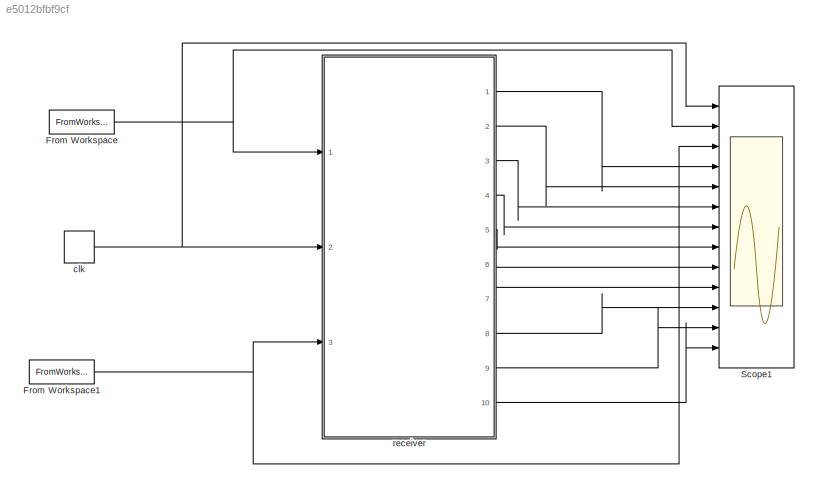
MODEL slx_e5012bfbf9cf
KIND model
CONFIG AbsTol = auto
CONFIG FixedStep = 1
CONFIG MaxStep = auto
CONFIG MinStep = auto
CONFIG RelTol = 1e-3
CONFIG SampleTimeConstraint = Unconstrained
CONFIG Solver = FixedStepDiscrete
CONFIG SolverMode = Auto
CONFIG SolverName = FixedStepDiscrete
CONFIG StartTime = 0.0
CONFIG StopTime = 1500
BLOCK [FromWorkspace] From Workspace
  SampleTime = 0
  VariableName = array
  ZeroCross = on
BLOCK [FromWorkspace] From Workspace1
  SampleTime = 0
  VariableName = read
  ZeroCross = on
BLOCK [Scope] Scope1
  Floating = off
  NumInputPorts = 13
  Ports = [13]
  SaveName = ScopeData1
  YMax = 5~5~5~5~5~5~5~5~5~5~5~5~5
  YMin = -5~-5~-5~-5~-5~-5~-5~-5~-5~-5~-5~-5~-5
BLOCK [DiscretePulseGenerator] clk
  Amplitude = true
  Ports = [0, 1]
  PulseType = Time based
  PulseWidth = 50
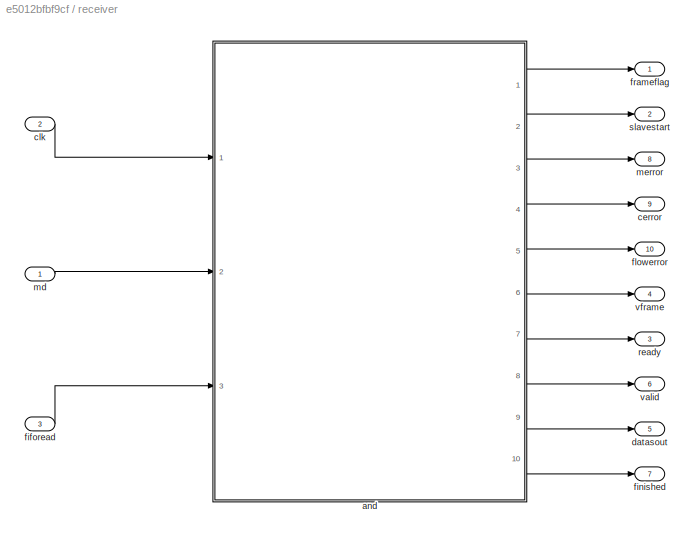
BLOCK [SubSystem] receiver
  Ports = [3, 10]
  RequestExecContextInheritance = off
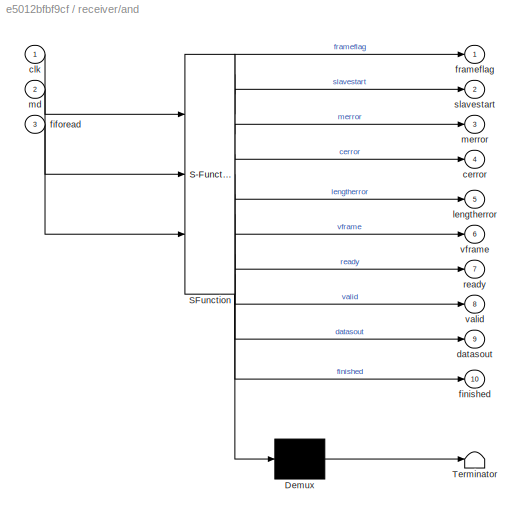
BLOCK [SubSystem] receiver/and
  ErrorFcn = Stateflow.Translate.translate
  PermitHierarchicalResolution = ExplicitOnly
  Ports = [3, 10]
  RequestExecContextInheritance = off
  SFBlockType = Chart
  TreatAsAtomicUnit = on
BLOCK [Demux] receiver/and/ Demux 
  Outputs = 1
  Ports = [1, 1]
BLOCK [S-Function] receiver/and/ SFunction 
  EnableBusSupport = on
  FunctionName = sf_sfun
  PortCounts = [3 11]
  Ports = [3, 11]
  Tag = Stateflow S-Function newModel 1
BLOCK [Terminator] receiver/and/ Terminator 
BLOCK [Outport] receiver/and/cerror
  IconDisplay = Port number
  Port = 4
BLOCK [Inport] receiver/and/clk
  IconDisplay = Port number
BLOCK [Outport] receiver/and/datasout
  IconDisplay = Port number
  Port = 9
BLOCK [Inport] receiver/and/fiforead
  IconDisplay = Port number
  Port = 3
BLOCK [Outport] receiver/and/finished
  IconDisplay = Port number
  Port = 10
BLOCK [Outport] receiver/and/frameflag
  IconDisplay = Port number
BLOCK [Outport] receiver/and/lengtherror
  IconDisplay = Port number
  Port = 5
BLOCK [Inport] receiver/and/md
  IconDisplay = Port number
  Port = 2
BLOCK [Outport] receiver/and/merror
  IconDisplay = Port number
  Port = 3
BLOCK [Outport] receiver/and/ready
  IconDisplay = Port number
  Port = 7
BLOCK [Outport] receiver/and/slavestart
  IconDisplay = Port number
  Port = 2
BLOCK [Outport] receiver/and/valid
  IconDisplay = Port number
  Port = 8
BLOCK [Outport] receiver/and/vframe
  IconDisplay = Port number
  Port = 6
BLOCK [Outport] receiver/cerror
  IconDisplay = Port number
  Port = 9
BLOCK [Inport] receiver/clk
  IconDisplay = Port number
  Port = 2
BLOCK [Outport] receiver/datasout
  IconDisplay = Port number
  Port = 5
BLOCK [Inport] receiver/fiforead
  IconDisplay = Port number
  Port = 3
BLOCK [Outport] receiver/finished
  IconDisplay = Port number
  Port = 7
BLOCK [Outport] receiver/flowerror
  IconDisplay = Port number
  Port = 10
BLOCK [Outport] receiver/frameflag
  IconDisplay = Port number
BLOCK [Inport] receiver/md 
  IconDisplay = Port number
BLOCK [Outport] receiver/merror
  IconDisplay = Port number
  Port = 8
BLOCK [Outport] receiver/ready
  IconDisplay = Port number
  Port = 3
BLOCK [Outport] receiver/slavestart
  IconDisplay = Port number
  Port = 2
BLOCK [Outport] receiver/valid
  IconDisplay = Port number
  Port = 6
BLOCK [Outport] receiver/vframe
  IconDisplay = Port number
  Port = 4
NET From Workspace1:1 -> Scope1:3, receiver:3
NET From Workspace:1 -> Scope1:2, receiver:1
NET clk:1 -> Scope1:1, receiver:2
LINE receiver/and:1 -> receiver/frameflag:1
LINE receiver/and:10 -> receiver/finished:1
LINE receiver/and:2 -> receiver/slavestart:1
LINE receiver/and:3 -> receiver/merror:1
LINE receiver/and:4 -> receiver/cerror:1
LINE receiver/and:5 -> receiver/flowerror:1
LINE receiver/and:6 -> receiver/vframe:1
LINE receiver/and:7 -> receiver/ready:1
LINE receiver/and:8 -> receiver/valid:1
LINE receiver/and:9 -> receiver/datasout:1
LINE receiver/clk:1 -> receiver/and:1
LINE receiver/fiforead:1 -> receiver/and:3
LINE receiver/md :1 -> receiver/and:2
LINE receiver:1 -> Scope1:4
LINE receiver:10 -> Scope1:13
LINE receiver:2 -> Scope1:5
LINE receiver:3 -> Scope1:6
LINE receiver:4 -> Scope1:7
LINE receiver:5 -> Scope1:8
LINE receiver:6 -> Scope1:9
LINE receiver:7 -> Scope1:10
LINE receiver:8 -> Scope1:11
LINE receiver:9 -> Scope1:12
note: NET lines group one-source signal fan-out (src -> all destinations, sorted); 1:1 wires keep LINE
CHART receiver/and states=34 transitions=105
  STATE_LABEL 'decoder'
  STATE_LABEL '采样4位以后，开始解码'
  STATE_LABEL 's000\nen:\nmasterframe=false;\nslaveframe=false;\nsample8 = uint8(0);\ndu:\ns000Action();\nexit:\ns000Action();'
  STATE_LABEL 's001'
  STATE_LABEL '[clk==1]\n{\nsample8=sample8+1;\nsAction();\n}'
  STATE_LABEL 's100\n\n'
  STATE_LABEL '[clk==1]\n{\nsample8 = sample8+1;\nsAction();\n}'
  STATE_LABEL 's101\nen:\nsample8 = sample8 + 1;'
  STATE_LABEL 's01\n'
  STATE_LABEL 's00'
  STATE_LABEL '[samples(1)==false &&samples(2)== true &&...\nsamples(3) == false &&samples(4) == true]\n{dataRegisters(3:16) =dataRegisters(1:14);\ndataRegisters(1:2) = [false; false];frameAction();}'
  STATE_LABEL '[samples(1)==false &&samples(2)== true &&...\nsamples(3) == true &&samples(4) == false]\n{dataRegisters(3:16) =dataRegisters(1:14);\ndataRegisters(1:2) = [false,true];frameAction();}'
  STATE_LABEL '[samples(1)==true &&samples(2)== false &&...\nsamples(3) == false &&samples(4) == true]\n{dataRegisters(3:16) = dataRegisters(1:14);\ndataRegisters(1:2) =[true,false];frameAction();}'
  STATE_LABEL '[samples(1)==true &&samples(2)== false &&...\nsamples(3) == true &&samples(4) == false]\n{dataRegisters(3:16) = dataRegisters(1:14);\ndataRegisters(1:2) =  [true,true];frameAction();}'
  STATE_LABEL 's01Action'
  STATE_LABEL '[counter8==0]'
  STATE_LABEL '{\nfifowrite=false;\ndatas(1:16)=[false; false; false; false;...\nfalse; false; false; false; false; false;...\nfalse; false; false; false; false; false];\nismaster=false;\nisslave=false;\n}'
  STATE_LABEL '[total == 4]'
  STATE_LABEL '{total=total+1;\nfifowrite=true;}'
  STATE_LABEL '{total = uint8(0);}'
  STATE_LABEL '[xor(checkcode(2), dataRegisters(10))==true ...\n&& xor(checkcode(3), dataRegisters(11))==true ...\n&& xor(checkcode(4), dataRegisters(12))==true ...\n&& xor(checkcode(5), dataRegisters(13))==true ...\n&& xor(checkcode(6), dataRegisters(14))==true ...\n&& xor(checkcode(7), dataRegisters(15))==true ...\n&& xor(checkcode(8), dataRegisters(16))==true...\n&& xor(xor(xor(xor(xor(xor(xor(xor(checkcode(8), chec...<+135ch>'
  STATE_LABEL '{cerrorflag = true;}'
  STATE_LABEL '[cfl == 16]'
  STATE_LABEL '{cfl = cfl+1}'
  STATE_LABEL '{overflow = true}'
  STATE_LABEL '{\ndataRegisters=[dataRegisters(8);...\ndataRegisters(7); dataRegisters(6); dataRegisters(5);...\ndataRegisters(4);dataRegisters(3);dataRegisters(2);...\ndataRegisters(1);false; false; false; false;...\nfalse; false; false; false];\ncounter8= uint8(4);\ncheckcode=[false; false; false;...\nfalse; false; false; false; false];\nismaster=false;\nisslave=false;\nfifowrite=false;\ndatas=[false; false; false;...\nfal...<+97ch>'
  STATE_LABEL '{\ndatas=dataRegisters;\ncheckcode(1) = xor(xor(xor(xor(xor(xor(xor(xor(xor(xor(xor...\n(xor(xor(xor(xor(xor(dataRegisters(15), dataRegisters(14)), ...\ndataRegisters(13)), dataRegisters(12)), dataRegisters(11)), ...\ndataRegisters(10)), dataRegisters(9)), dataRegisters(8)),...\ndataRegisters(7)), dataRegisters(6)), dataRegisters(5)), ...\ndataRegisters(4)), dataRegisters(3)), dataRegisters(2)), ...\ndata...<+1836ch>'
  STATE_LABEL '{\nmerror=false;\ncerror=false;\nready=false;\nlengtherror=false;\nvframe=false;\n}'
  STATE_LABEL 's010\n\n'
  STATE_LABEL '[clk==1]\n{\nsample8 = sample8+1;\nsAction();\n}'
  STATE_LABEL 's011'
  STATE_LABEL '[clk==1]\n{\nsample8 = sample8+1;\nsAction();\n}'
  STATE_LABEL 's002s000Action'
  STATE_LABEL '[counter8==4]'
  STATE_LABEL '{\nmerror=true;\ncerror=false;\nready=false;\nismaster=masterframe;\nisslave=slaveframe;\nlengtherror=false;\nvframe=false;\n}'
  STATE_LABEL '[xor(checkcode(2), dataRegisters(2))==true ...\n&& xor(checkcode(3), dataRegisters(3))==true ...\n&& xor(checkcode(4), dataRegisters(4))==true ...\n&& xor(checkcode(5), dataRegisters(5))==true ...\n&& xor(checkcode(6), dataRegisters(6))==true ...\n&& xor(checkcode(7), dataRegisters(7))==true ...\n&& xor(checkcode(8), dataRegisters(8))==true...\n&& xor(xor(xor(xor(xor(xor(xor(xor(checkcode(8), checkcode(7...<+128ch>'
  STATE_LABEL '{\ncerror=true;\nready=false;\nmerror=false;\n}'
  STATE_LABEL '[cerrorflag==false && overflow==false && ...\n(cfl==1 || cfl==2 || cfl==4 || cfl==8 || cfl==16)]'
  STATE_LABEL '{ready=true;}'
  STATE_LABEL '{ready = false;}'
